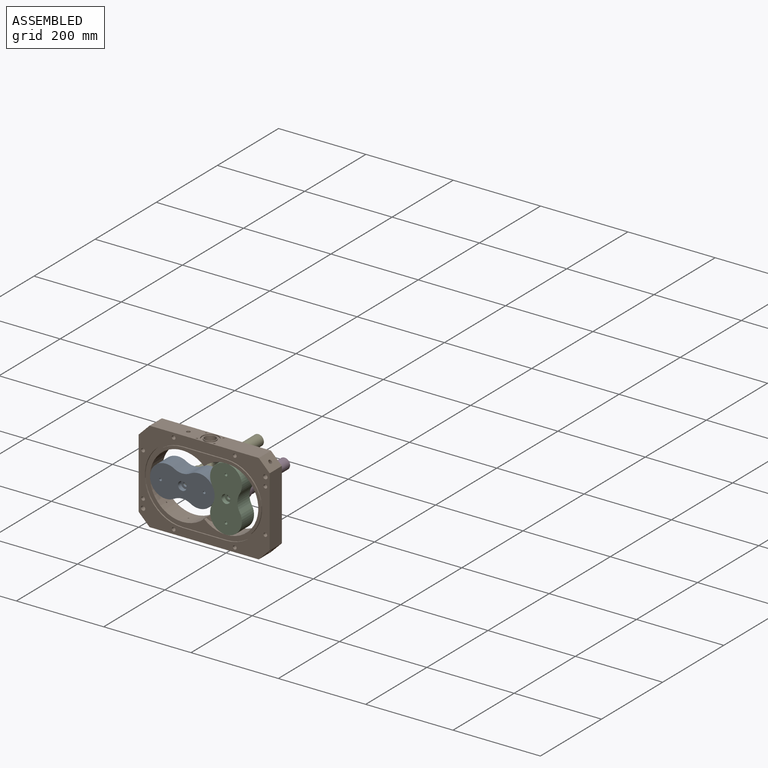
[diagram: assembled view]
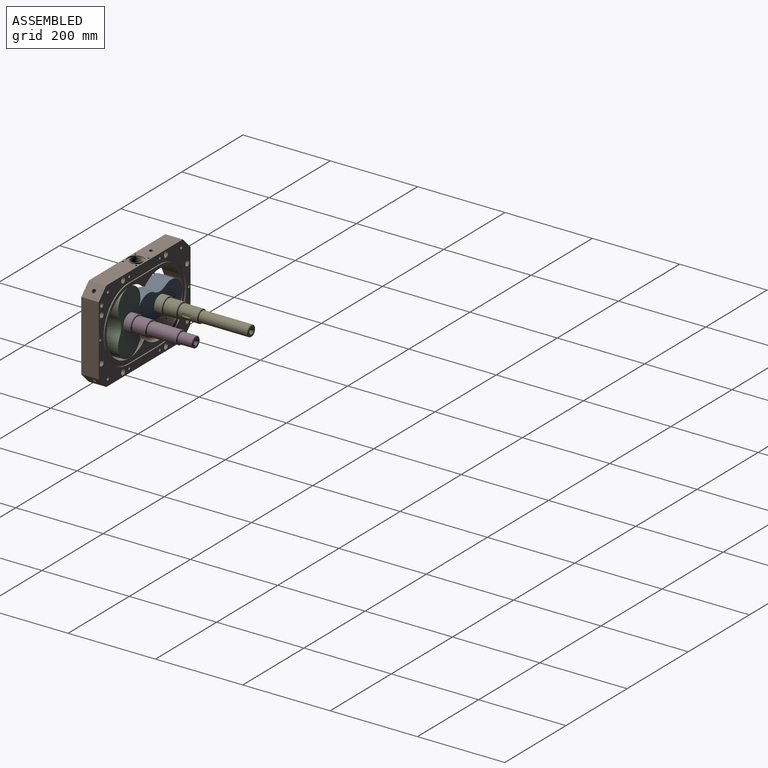
[diagram: assembled view, second angle]
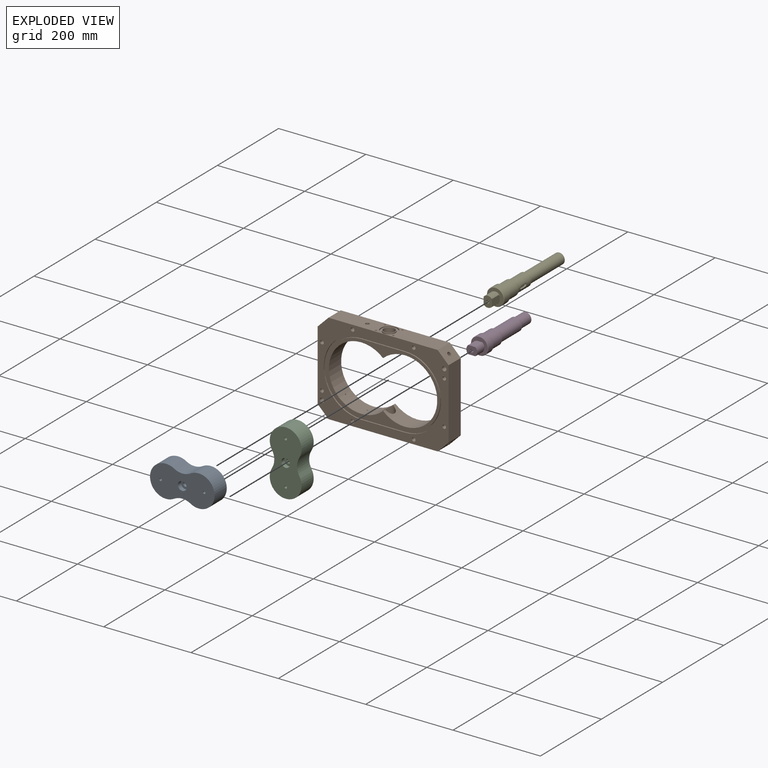
[diagram: exploded view]
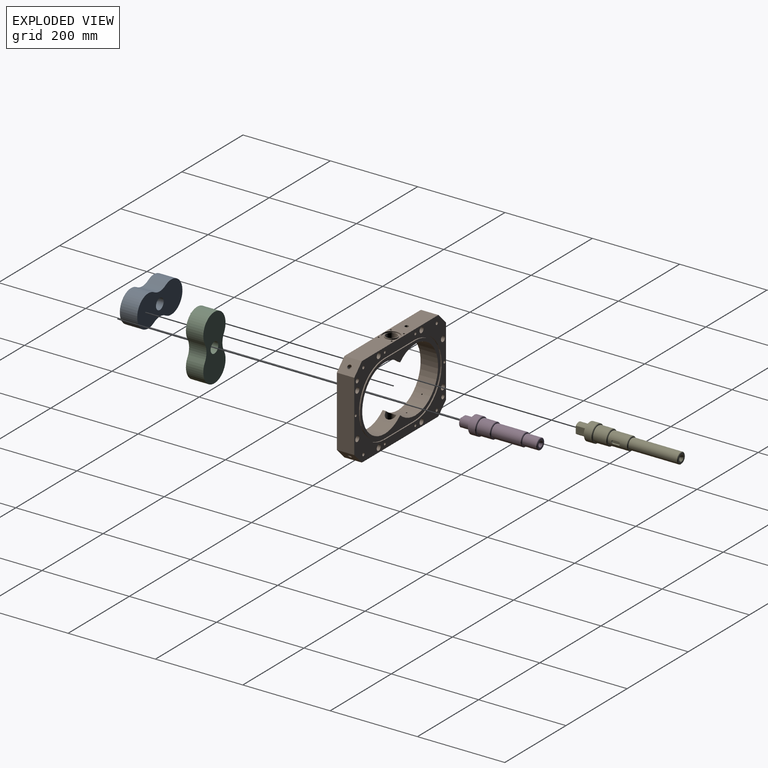
[diagram: exploded view, second angle]
ASSEMBLY  parts=5 mates=4
PART A: 15 faces, bbox 39.8x147.9x72.9 mm
  f0: cylinder r=36.44mm len=39.8mm, axis (-1,0,0), area 1568.9mm2, adj f1,f3,f4,f5
  f1: cylinder r=36.44mm len=72.88mm, axis (-1,0,0), area 6125.1mm2, adj f0,f2,f4,f5
  f2: cylinder r=36.44mm len=39.8mm, axis (-1,0,0), area 1568.9mm2, adj f1,f3,f4,f5
  f3: cylinder r=36.44mm len=72.88mm, axis (-1,0,0), area 6125.1mm2, adj f0,f2,f4,f5
  f4: plane 147.93x72.88mm, normal (1,0,0), area 8489.5mm2, adj f0,f1,f2,f3,f6,f12,f14
  f5: plane 147.93x72.88mm, normal (-1,0,0), area 8369.3mm2, adj f0,f1,f2,f3,f10
  f6: cylinder r=10mm len=20mm, axis (1,0,0), area 628.3mm2, adj f4,f7
  f7: plane 20x20mm, normal (1,0,0), area 235.6mm2, adj f6,f8
  f8: cylinder r=5mm len=10mm, axis (1,0,0), area 153.9mm2, adj f7,f9
  f9: plane 25x25mm, normal (-1,0,0), area 412.3mm2, adj f8,f10
  f10: cylinder r=12.5mm len=25mm, axis (1,0,0), area 1955.6mm2, adj f5,f9
  f11: cone r=0mm half-angle=59deg, axis (1,0,0), area 33mm2, adj f12
  f12: cylinder r=3mm len=10mm, axis (1,0,0), area 188.5mm2, adj f4,f11
  f13: cone r=0mm half-angle=59deg, axis (1,0,0), area 33mm2, adj f14
  f14: cylinder r=3mm len=10mm, axis (1,0,0), area 188.5mm2, adj f4,f13
PART B: 122 faces, bbox 210x40x300 mm
  f0: plane 262x162mm, normal (0,1,0), area 5973.5mm2, adj f3,f4,f113,f114,f115,f120
  f1: plane 28x28mm, normal (-1,0,0), area 124.9mm2, adj f90,f102
  f2: plane 28x28mm, normal (1,0,0), area 124.9mm2, adj f89,f91
  f3: cylinder r=74.08mm len=148.16mm, axis (0,-1,0), area 13054.5mm2, adj f0,f4,f16,f78,f80,f84,f88,f89
  f4: cylinder r=74.08mm len=148.16mm, axis (0,-1,0), area 13067.8mm2, adj f0,f3,f16,f82,f86,f89,f90
  f5: cone r=0mm half-angle=59deg, axis (-1,0,0), area 61.6mm2, adj f87,f88
  f6: cone r=0mm half-angle=59deg, axis (0.71,0,-0.71), area 67.5mm2, adj f85,f86
  f7: cone r=0mm half-angle=59deg, axis (0.71,0,0.71), area 67.5mm2, adj f83,f84
  f8: cone r=0mm half-angle=59deg, axis (-0.71,0,-0.71), area 67.5mm2, adj f81,f82
  f9: cone r=0mm half-angle=59deg, axis (1,0,0), area 61.6mm2, adj f79,f80
  f10: cone r=0mm half-angle=59deg, axis (-0.71,0,0.71), area 67.5mm2, adj f77,f78
  f11: plane 300x210mm, normal (0,-1,0), area 19763.3mm2, adj f12,f13,f14,f15,f18,f19,f20,f21
  f12: plane 160x40mm, normal (0,0,1), area 6400mm2, adj f11,f17,f20,f21
  f13: plane 250x40mm, normal (-1,0,0), area 8750.6mm2, adj f11,f17,f19,f21,f87,f103,f106,f108
  f14: plane 160x40mm, normal (0,0,-1), area 6400mm2, adj f11,f17,f18,f19
  f15: plane 250x40mm, normal (1,0,0), area 8750.6mm2, adj f11,f17,f18,f20,f79,f92,f95,f97
  f16: plane 262x162mm, normal (0,-1,0), area 5973.5mm2, adj f3,f4,f22,f23,f24,f29
  f17: plane 300x210mm, normal (0,1,0), area 20703.7mm2, adj f12,f13,f14,f15,f18,f19,f20,f21
  f18: plane 40x25mm, normal (0.71,0,-0.71), area 1349.3mm2, adj f11,f14,f15,f17,f85
  f19: plane 40x25mm, normal (-0.71,0,-0.71), area 1349.3mm2, adj f11,f13,f14,f17,f81
  f20: plane 40x25mm, normal (0.71,0,0.71), area 1349.3mm2, adj f11,f12,f15,f17,f83
  f21: plane 40x25mm, normal (-0.71,0,0.71), area 1349.3mm2, adj f11,f12,f13,f17,f77
  f22: cylinder r=81mm len=162mm, axis (0,-1,0), area 687.1mm2, adj f16,f23,f29,f30
  f23: plane 100x2.7mm, normal (1,0,0), area 270mm2, adj f16,f22,f24,f30
  f24: cylinder r=81mm len=162mm, axis (0,-1,0), area 687.1mm2, adj f16,f23,f29,f30
  f25: plane 100x2.7mm, normal (-1,0,0), area 270mm2, adj f11,f26,f28,f30
  f26: cylinder r=86mm len=172mm, axis (0,-1,0), area 729.5mm2, adj f11,f25,f27,f30
  f27: plane 100x2.7mm, normal (1,0,0), area 270mm2, adj f11,f26,f28,f30
  f28: cylinder r=86mm len=172mm, axis (0,-1,0), area 729.5mm2, adj f11,f25,f27,f30
  f29: plane 100x2.7mm, normal (-1,0,0), area 270mm2, adj f16,f22,f24,f30
  f30: plane 272x172mm, normal (0,-1,0), area 3623.2mm2, adj f22,f23,f24,f25,f26,f27,f28,f29
  f31: cone r=0mm half-angle=59deg, axis (0,-1,0), area 33mm2, adj f32
  f32: cylinder r=3mm len=10mm, axis (0,-1,0), area 188.5mm2, adj f11,f31
  f33: cone r=0mm half-angle=59deg, axis (0,-1,0), area 33mm2, adj f34
  f34: cylinder r=3mm len=10mm, axis (0,-1,0), area 188.5mm2, adj f11,f33
  f35: cone r=0mm half-angle=59deg, axis (0,-1,0), area 33mm2, adj f36
  f36: cylinder r=3mm len=10mm, axis (0,-1,0), area 188.5mm2, adj f11,f35
  f37: cone r=0mm half-angle=59deg, axis (0,-1,0), area 33mm2, adj f38
  f38: cylinder r=3mm len=10mm, axis (0,-1,0), area 188.5mm2, adj f11,f37
  f39: cone r=0mm half-angle=59deg, axis (0,-1,0), area 33mm2, adj f40
  f40: cylinder r=3mm len=10mm, axis (0,-1,0), area 188.5mm2, adj f11,f39
  f41: cone r=0mm half-angle=59deg, axis (0,-1,0), area 33mm2, adj f42
  f42: cylinder r=3mm len=10mm, axis (0,-1,0), area 188.5mm2, adj f11,f41
  f43: cylinder r=4.25mm len=20mm, axis (0,-1,0), area 534.1mm2, adj f17,f44
  f44: plane 13x13mm, normal (0,-1,0), area 76mm2, adj f43,f45
  f45: cylinder r=6.5mm len=20mm, axis (0,-1,0), area 816.8mm2, adj f11,f44
  f46: cylinder r=4.25mm len=20mm, axis (0,-1,0), area 534.1mm2, adj f17,f47
  f47: plane 13x13mm, normal (0,-1,0), area 76mm2, adj f46,f48
  f48: cylinder r=6.5mm len=20mm, axis (0,-1,0), area 816.8mm2, adj f11,f47
  f49: cylinder r=4.25mm len=20mm, axis (0,-1,0), area 534.1mm2, adj f17,f50
  f50: plane 13x13mm, normal (0,-1,0), area 76mm2, adj f49,f51
  f51: cylinder r=6.5mm len=20mm, axis (0,-1,0), area 816.8mm2, adj f11,f50
  f52: cylinder r=4.25mm len=20mm, axis (0,-1,0), area 534.1mm2, adj f17,f53
  f53: plane 13x13mm, normal (0,-1,0), area 76mm2, adj f52,f54
  f54: cylinder r=6.5mm len=20mm, axis (0,-1,0), area 816.8mm2, adj f11,f53
  f55: cylinder r=4.25mm len=20mm, axis (0,-1,0), area 534.1mm2, adj f17,f56
  f56: plane 13x13mm, normal (0,-1,0), area 76mm2, adj f55,f57
  f57: cylinder r=6.5mm len=20mm, axis (0,-1,0), area 816.8mm2, adj f11,f56
  f58: cylinder r=4.25mm len=20mm, axis (0,-1,0), area 534.1mm2, adj f17,f59
  f59: plane 13x13mm, normal (0,-1,0), area 76mm2, adj f58,f60
  f60: cylinder r=6.5mm len=20mm, axis (0,-1,0), area 816.8mm2, adj f11,f59
  f61: cylinder r=4.25mm len=20mm, axis (0,-1,0), area 534.1mm2, adj f17,f62
  f62: plane 13x13mm, normal (0,-1,0), area 76mm2, adj f61,f63
  f63: cylinder r=6.5mm len=20mm, axis (0,-1,0), area 816.8mm2, adj f11,f62
  f64: cylinder r=4.25mm len=20mm, axis (0,-1,0), area 534.1mm2, adj f17,f65
  f65: plane 13x13mm, normal (0,-1,0), area 76mm2, adj f64,f66
  f66: cylinder r=6.5mm len=20mm, axis (0,-1,0), area 816.8mm2, adj f11,f65
  f67: cone r=0mm half-angle=59deg, axis (0,-1,0), area 47.5mm2, adj f68
  f68: cylinder r=3.6mm len=15.75mm, axis (0,-1,0), area 356.3mm2, adj f11,f67
  f69: cone r=0mm half-angle=59deg, axis (0,-1,0), area 47.5mm2, adj f70
  f70: cylinder r=3.6mm len=15.75mm, axis (0,-1,0), area 356.3mm2, adj f11,f69
  f71: cone r=0mm half-angle=59deg, axis (0,-1,0), area 47.5mm2, adj f72
  f72: cylinder r=3.6mm len=15.75mm, axis (0,-1,0), area 356.3mm2, adj f11,f71
  f73: cone r=0mm half-angle=59deg, axis (0,-1,0), area 47.5mm2, adj f74
  f74: cylinder r=3.6mm len=15.75mm, axis (0,-1,0), area 356.3mm2, adj f11,f73
  f75: cylinder r=5mm len=40mm, axis (0,-1,0), area 1256.6mm2, adj f11,f17
  f76: cylinder r=5mm len=40mm, axis (0,-1,0), area 1256.6mm2, adj f11,f17
  f77: cylinder r=4.55mm len=13.5mm, axis (-0.71,0,0.71), area 285.7mm2, adj f10,f21
  f78: cylinder r=1.5mm len=31.49mm, axis (-0.71,0,0.71), area 390.8mm2, adj f3,f10
  f79: cylinder r=4.37mm len=10mm, axis (1,0,0), area 274.3mm2, adj f9,f15
  f80: cylinder r=1.5mm len=19.21mm, axis (1,0,0), area 181.1mm2, adj f3,f9
  f81: cylinder r=4.55mm len=13.5mm, axis (-0.71,0,-0.71), area 285.7mm2, adj f8,f19
  f82: cylinder r=1.5mm len=31.49mm, axis (-0.71,0,-0.71), area 390.8mm2, adj f4,f8
  f83: cylinder r=4.55mm len=13.5mm, axis (0.71,0,0.71), area 285.7mm2, adj f7,f20
  f84: cylinder r=1.5mm len=31.49mm, axis (0.71,0,0.71), area 390.8mm2, adj f3,f7
  f85: cylinder r=4.55mm len=13.5mm, axis (0.71,0,-0.71), area 285.7mm2, adj f6,f18
  f86: cylinder r=1.5mm len=31.49mm, axis (0.71,0,-0.71), area 390.8mm2, adj f4,f6
  f87: cylinder r=4.37mm len=10mm, axis (-1,0,0), area 274.3mm2, adj f5,f13
  f88: cylinder r=1.5mm len=19.21mm, axis (-1,0,0), area 181.1mm2, adj f3,f5
  f89: cylinder r=12.5mm len=50.34mm, axis (1,0,0), area 3470.7mm2, adj f2,f3,f4
  f90: cylinder r=12.5mm len=50.34mm, axis (1,0,0), area 3470.6mm2, adj f1,f3,f4
  f91: cylinder r=14mm len=28mm, axis (1,0,0), area 237.5mm2, adj f2,f93
  f92: cylinder r=19mm len=38mm, axis (1,0,0), area 322.3mm2, adj f15,f93
  f93: plane 38x38mm, normal (1,0,0), area 518.4mm2, adj f91,f92
  f94: cone r=0mm half-angle=59deg, axis (1,0,0), area 16.2mm2, adj f95
  f95: cylinder r=2.1mm len=10mm, axis (1,0,0), area 131.9mm2, adj f15,f94
  f96: cone r=0mm half-angle=59deg, axis (1,0,0), area 16.2mm2, adj f97
  f97: cylinder r=2.1mm len=10mm, axis (1,0,0), area 131.9mm2, adj f15,f96
  f98: cone r=0mm half-angle=59deg, axis (1,0,0), area 16.2mm2, adj f99
  f99: cylinder r=2.1mm len=10mm, axis (1,0,0), area 131.9mm2, adj f15,f98
  f100: cone r=0mm half-angle=59deg, axis (1,0,0), area 16.2mm2, adj f101
  f101: cylinder r=2.1mm len=10mm, axis (1,0,0), area 131.9mm2, adj f15,f100
  f102: cylinder r=14mm len=28mm, axis (-1,0,0), area 237.5mm2, adj f1,f104
  f103: cylinder r=19mm len=38mm, axis (-1,0,0), area 322.3mm2, adj f13,f104
  f104: plane 38x38mm, normal (-1,0,0), area 518.4mm2, adj f102,f103
  f105: cone r=0mm half-angle=59deg, axis (-1,0,0), area 16.2mm2, adj f106
  f106: cylinder r=2.1mm len=10mm, axis (-1,0,0), area 131.9mm2, adj f13,f105
  f107: cone r=0mm half-angle=59deg, axis (-1,0,0), area 16.2mm2, adj f108
  f108: cylinder r=2.1mm len=10mm, axis (-1,0,0), area 131.9mm2, adj f13,f107
  f109: cone r=0mm half-angle=59deg, axis (-1,0,0), area 16.2mm2, adj f110
  f110: cylinder r=2.1mm len=10mm, axis (-1,0,0), area 131.9mm2, adj f13,f109
  f111: cone r=0mm half-angle=59deg, axis (-1,0,0), area 16.2mm2, adj f112
  f112: cylinder r=2.1mm len=10mm, axis (-1,0,0), area 131.9mm2, adj f13,f111
  f113: cylinder r=81mm len=162mm, axis (0,1,0), area 687.1mm2, adj f0,f114,f120,f121
  f114: plane 100x2.7mm, normal (-1,0,0), area 270mm2, adj f0,f113,f115,f121
  f115: cylinder r=81mm len=162mm, axis (0,1,0), area 687.1mm2, adj f0,f114,f120,f121
  f116: plane 100x2.7mm, normal (-1,0,0), area 270mm2, adj f17,f117,f119,f121
  f117: cylinder r=86mm len=172mm, axis (0,1,0), area 729.5mm2, adj f17,f116,f118,f121
  f118: plane 100x2.7mm, normal (1,0,0), area 270mm2, adj f17,f117,f119,f121
  f119: cylinder r=86mm len=172mm, axis (0,1,0), area 729.5mm2, adj f17,f116,f118,f121
  f120: plane 100x2.7mm, normal (1,0,0), area 270mm2, adj f0,f113,f115,f121
  f121: plane 272x172mm, normal (0,1,0), area 3623.2mm2, adj f113,f114,f115,f116,f117,f118,f119,f120
PART C: same geometry as A
PART D: 34 faces, bbox 178x40x40 mm
  f0: plane 25x19mm, normal (1,0,0), area 387.8mm2, adj f1,f15,f23,f24,f25
  f1: cylinder r=12.5mm len=23mm, axis (1,0,0), area 496.4mm2, adj f0,f2,f24,f25
  f2: plane 19x6.02mm, normal (-1,0,0), area 21.9mm2, adj f1,f5,f24,f25
  f3: plane 19x6.02mm, normal (-1,0,0), area 21.9mm2, adj f4,f15,f24,f25
  f4: cylinder r=11.5mm len=19mm, axis (1,0,0), area 44.7mm2, adj f3,f16,f24,f25
  f5: cylinder r=11.5mm len=19mm, axis (1,0,0), area 44.7mm2, adj f2,f16,f24,f25
  f6: plane 33x33mm, normal (-1,0,0), area 239.5mm2, adj f7,f27
  f7: cylinder r=14mm len=28mm, axis (1,0,0), area 175.9mm2, adj f6,f8
  f8: plane 30x30mm, normal (1,0,0), area 91.1mm2, adj f7,f9
  f9: cylinder r=15mm len=66mm, axis (1,0,0), area 6220.4mm2, adj f8,f28
  f10: plane 28x28mm, normal (-1,0,0), area 200.3mm2, adj f11,f28
  f11: cylinder r=11.5mm len=23mm, axis (1,0,0), area 144.5mm2, adj f10,f12
  f12: plane 25x25mm, normal (1,0,0), area 75.4mm2, adj f11,f13
  f13: cylinder r=12.5mm len=31mm, axis (1,0,0), area 2434.7mm2, adj f12,f26
  f14: plane 23x23mm, normal (-1,0,0), area 261.5mm2, adj f26,f33
  f15: cylinder r=12.5mm len=23mm, axis (1,0,0), area 496.4mm2, adj f0,f3,f24,f25
  f16: plane 38x38mm, normal (1,0,0), area 753.9mm2, adj f4,f5,f24,f25,f30
  f17: cylinder r=20mm len=40mm, axis (1,0,0), area 2010.6mm2, adj f29,f30
  f18: plane 38x38mm, normal (-1,0,0), area 278.8mm2, adj f19,f29
  f19: cylinder r=16.5mm len=33mm, axis (1,0,0), area 207.3mm2, adj f18,f20
  f20: plane 35x35mm, normal (1,0,0), area 106.8mm2, adj f19,f21
  f21: cylinder r=17.5mm len=35mm, axis (1,0,0), area 3188.7mm2, adj f20,f27
  f22: cone r=0mm half-angle=59deg, axis (1,0,0), area 42.4mm2, adj f23
  f23: cylinder r=3.4mm len=16mm, axis (1,0,0), area 341.8mm2, adj f0,f22
  f24: plane 25x16.25mm, normal (0,0,-1), area 399.6mm2, adj f0,f1,f2,f3,f4,f5,f15,f16
  f25: plane 25x16.25mm, normal (0,0,1), area 399.6mm2, adj f0,f1,f2,f3,f4,f5,f15,f16
  f26: cone r=12.5mm half-angle=45deg, axis (1,0,0), area 106.6mm2, adj f13,f14
  f27: cone r=17.5mm half-angle=45deg, axis (1,0,0), area 151.1mm2, adj f6,f21
  f28: cone r=15mm half-angle=45deg, axis (1,0,0), area 128.8mm2, adj f9,f10
  f29: cone r=20mm half-angle=45deg, axis (1,0,0), area 173.3mm2, adj f17,f18
  f30: cone r=19mm half-angle=45deg, axis (-1,0,0), area 173.3mm2, adj f16,f17
  f31: cone r=0mm half-angle=59deg, axis (-1,0,0), area 36.4mm2, adj f32
  f32: cylinder r=3.15mm len=6.3mm, axis (-1,0,0), area 105.5mm2, adj f31,f33
  f33: cone r=3.15mm half-angle=30deg, axis (-1,0,0), area 245.5mm2, adj f14,f32
PART E: 39 faces, bbox 235x40x40 mm
  f0: cylinder r=12.5mm len=23mm, axis (1,0,0), area 496.4mm2, adj f1,f4,f27,f28
  f1: plane 19x6.02mm, normal (-1,0,0), area 21.9mm2, adj f0,f7,f27,f28
  f2: cylinder r=11.5mm len=19mm, axis (1,0,0), area 44.7mm2, adj f6,f8,f27,f28
  f3: plane 23x23mm, normal (-1,0,0), area 261.5mm2, adj f24,f34
  f4: plane 25x19mm, normal (1,0,0), area 387.8mm2, adj f0,f5,f26,f27,f28
  f5: cylinder r=12.5mm len=23mm, axis (1,0,0), area 496.4mm2, adj f4,f6,f27,f28
  f6: plane 19x6.02mm, normal (-1,0,0), area 21.9mm2, adj f2,f5,f27,f28
  f7: cylinder r=11.5mm len=19mm, axis (1,0,0), area 44.7mm2, adj f1,f8,f27,f28
  f8: plane 38x38mm, normal (1,0,0), area 753.9mm2, adj f2,f7,f27,f28,f38
  f9: cylinder r=20mm len=40mm, axis (1,0,0), area 2199.1mm2, adj f37,f38
  f10: plane 38x38mm, normal (-1,0,0), area 278.8mm2, adj f11,f37
  f11: cylinder r=16.5mm len=33mm, axis (1,0,0), area 207.3mm2, adj f10,f12
  f12: plane 35x35mm, normal (1,0,0), area 106.8mm2, adj f11,f13
  f13: cylinder r=17.5mm len=35mm, axis (1,0,0), area 3188.7mm2, adj f12,f36
  f14: plane 33x33mm, normal (-1,0,0), area 239.5mm2, adj f15,f36
  f15: cylinder r=14mm len=28mm, axis (1,0,0), area 175.9mm2, adj f14,f16
  f16: plane 30x30mm, normal (1,0,0), area 91.1mm2, adj f15,f17
  f17: cylinder r=15mm len=42.5mm, axis (1,0,0), area 3857.6mm2, adj f16,f29,f30,f32,f33,f35
  f18: plane 28x28mm, normal (-1,0,0), area 200.3mm2, adj f19,f35
  f19: cylinder r=11.5mm len=23mm, axis (1,0,0), area 144.5mm2, adj f18,f20
  f20: plane 25x25mm, normal (1,0,0), area 75.4mm2, adj f19,f21
  f21: cylinder r=12.5mm len=110mm, axis (1,0,0), area 8639.4mm2, adj f20,f34
  f22: cone r=0mm half-angle=59deg, axis (-1,0,0), area 36.4mm2, adj f23
  f23: cylinder r=3.15mm len=6.3mm, axis (-1,0,0), area 105.5mm2, adj f22,f24
  f24: cone r=3.15mm half-angle=30deg, axis (-1,0,0), area 245.5mm2, adj f3,f23
  f25: cone r=0mm half-angle=59deg, axis (1,0,0), area 42.4mm2, adj f26
  f26: cylinder r=3.4mm len=16mm, axis (1,0,0), area 341.8mm2, adj f4,f25
  f27: plane 25x16.25mm, normal (0,0,-1), area 399.6mm2, adj f0,f1,f2,f4,f5,f6,f7,f8
  f28: plane 25x16.25mm, normal (0,0,1), area 399.6mm2, adj f0,f1,f2,f4,f5,f6,f7,f8
  f29: plane 12x3.46mm, normal (0,1,0), area 41.5mm2, adj f17,f31,f32,f33
  f30: plane 12x3.46mm, normal (0,-1,0), area 41.5mm2, adj f17,f31,f32,f33
  f31: plane 20x8mm, normal (0,0,1), area 146.3mm2, adj f29,f30,f32,f33
  f32: cylinder r=4mm len=8mm, axis (0,0,-1), area 46.9mm2, adj f17,f29,f30,f31
  f33: cylinder r=4mm len=8mm, axis (0,0,1), area 46.9mm2, adj f17,f29,f30,f31
  f34: cone r=12.5mm half-angle=45deg, axis (1,0,0), area 106.6mm2, adj f3,f21
  f35: cone r=15mm half-angle=45deg, axis (1,0,0), area 128.8mm2, adj f17,f18
  f36: cone r=17.5mm half-angle=45deg, axis (1,0,0), area 151.1mm2, adj f13,f14
  f37: cone r=20mm half-angle=45deg, axis (1,0,0), area 173.3mm2, adj f9,f10
  f38: cone r=19mm half-angle=45deg, axis (-1,0,0), area 173.3mm2, adj f8,f9
PLACE A rot(axis=(0.71,-0.71,0),180deg) t=(100,39.8,-80)mm
PLACE B rot(axis=(0.71,0,-0.71),180deg) t=(150,0,-80)mm
PLACE C rot(axis=(-0.58,0.58,-0.58),120deg) t=(200,39.8,-80)mm
PLACE D rot(axis=(0,0,-1),90deg) t=(200,-76.37,-80)mm
PLACE E rot(axis=(-0.58,0.58,-0.58),120deg) t=(209.78,-62.89,-80)mm
MATE fastened E.f0 <-> A.f6  axis (0,-1,0) through (100,14.9,-80)mm
MATE fastened C.f6 <-> B.f4  axis (0,-1,0) through (200,0,-80)mm
MATE fastened A.f6 <-> B.f3  axis (0,-1,0) through (100,0,-80)mm
MATE fastened D.f1 <-> C.f6  axis (0,-1,0) through (200,14.9,-80)mm
